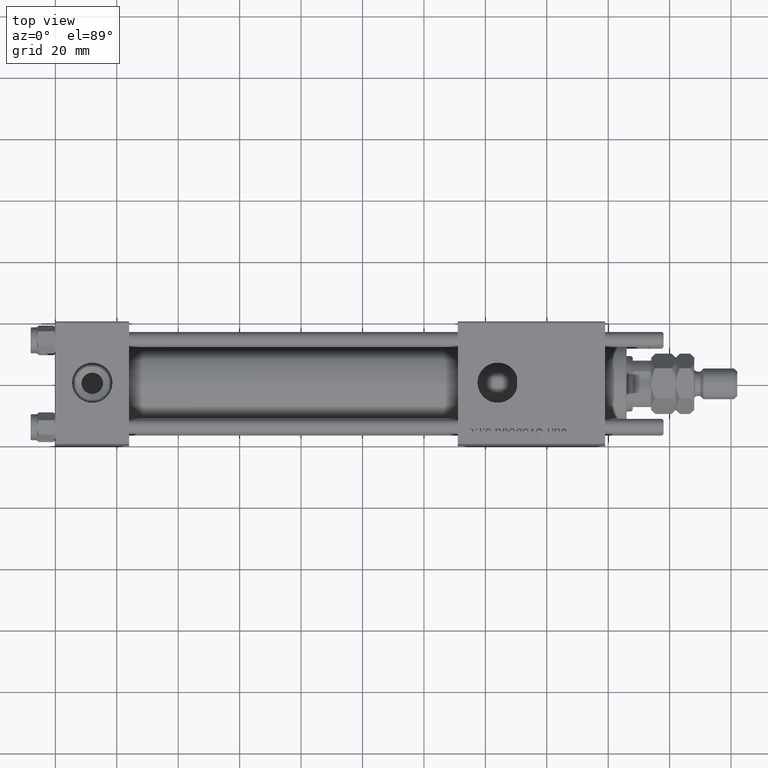
[diagram: clean part render]
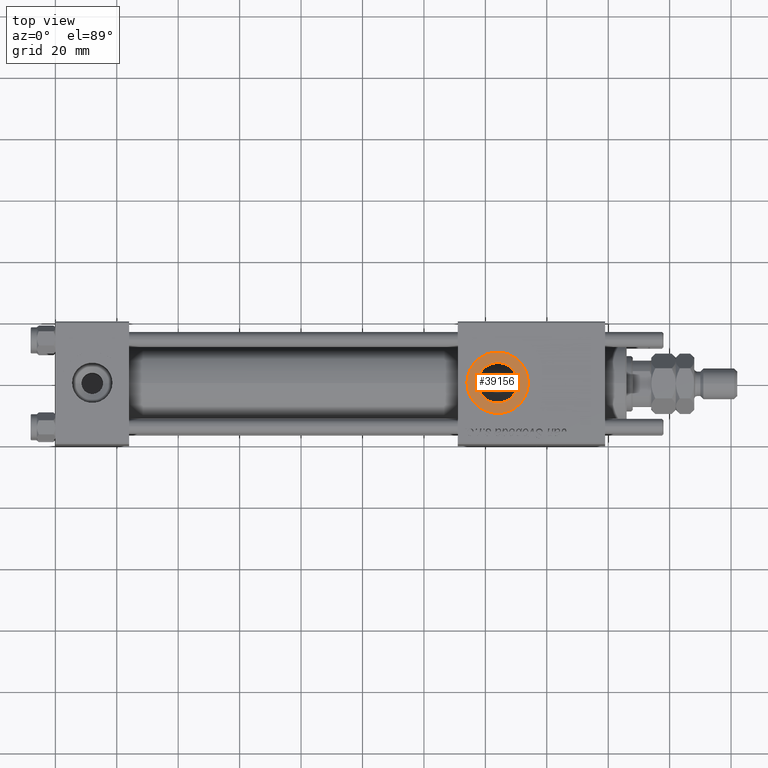
[diagram: same view with one face highlighted and labeled with its STEP entity id]
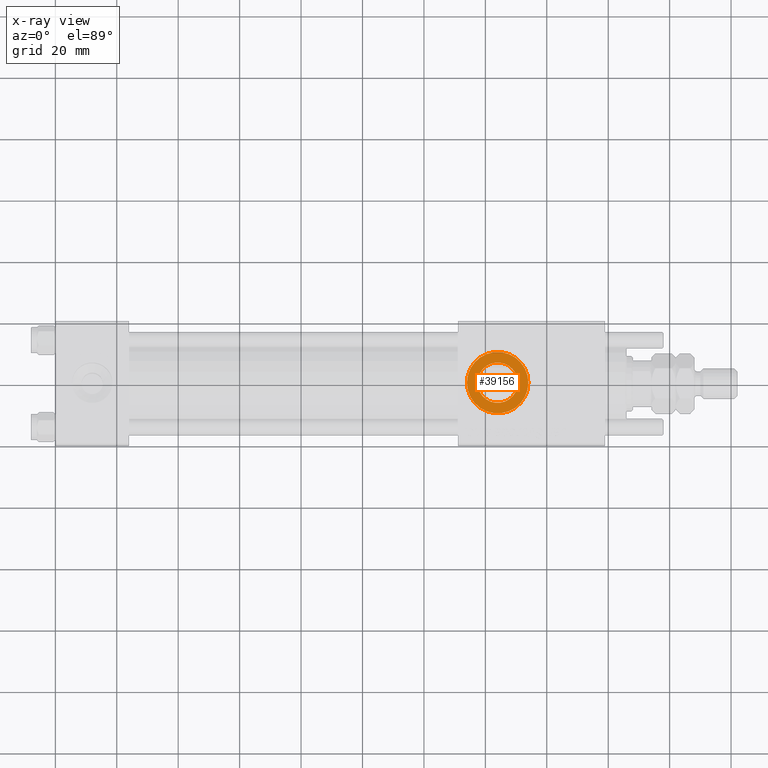
[diagram: x-ray of the same camera — body ghosted, the highlighted face saturated]
A machine part, top view. The second image highlights one B-rep face of the part: STEP entity #39156.
The next image is the same camera in x-ray: the body ghosted, the highlighted face saturated — about 0% of this face is hidden behind the body in this view.
In plain terms, the highlighted planar face has unit normal (0, 0, 1).
Its self-contained STEP definition (entity closure, byte-faithful):
#337 = DIRECTION ( 'NONE',  ( -0.000000000000000000, -0.000000000000000000, -1.000000000000000000 ) ) ;
#4327 = VERTEX_POINT ( 'NONE', #5021 ) ;
#5021 = CARTESIAN_POINT ( 'NONE',  ( 137.4200000000000159, -1.734723475976806897E-15, 19.80000000000000071 ) ) ;
#5383 = EDGE_CURVE ( 'NONE', #4327, #5876, #10561, .T. ) ;
#5876 = VERTEX_POINT ( 'NONE', #36820 ) ;
#5900 = FACE_BOUND ( 'NONE', #54006, .T. ) ;
#6278 = CARTESIAN_POINT ( 'NONE',  ( 154.0000000000000284, -1.734723475976806897E-15, 19.80000000000000071 ) ) ;
#8089 = VERTEX_POINT ( 'NONE', #29613 ) ;
#10274 = EDGE_LOOP ( 'NONE', ( #50930, #37161 ) ) ;
#10561 = CIRCLE ( 'NONE', #55439, 6.580000000000002736 ) ;
#11256 = DIRECTION ( 'NONE',  ( 0.000000000000000000, 0.000000000000000000, 1.000000000000000000 ) ) ;
#15875 = CIRCLE ( 'NONE', #17827, 10.00000000000000888 ) ;
#17005 = DIRECTION ( 'NONE',  ( 1.000000000000000000, 0.000000000000000000, 0.000000000000000000 ) ) ;
#17042 = AXIS2_PLACEMENT_3D ( 'NONE', #35363, #11256, #17005 ) ;
#17827 = AXIS2_PLACEMENT_3D ( 'NONE', #37328, #23247, #51705 ) ;
#19620 = DIRECTION ( 'NONE',  ( 0.000000000000000000, 0.000000000000000000, 1.000000000000000000 ) ) ;
#20236 = DIRECTION ( 'NONE',  ( 1.000000000000000000, 0.000000000000000000, -0.000000000000000000 ) ) ;
#20537 = PLANE ( 'NONE',  #32843 ) ;
#23136 = ORIENTED_EDGE ( 'NONE', *, *, #5383, .T. ) ;
#23247 = DIRECTION ( 'NONE',  ( 0.000000000000000000, 0.000000000000000000, 1.000000000000000000 ) ) ;
#25428 = ORIENTED_EDGE ( 'NONE', *, *, #34326, .T. ) ;
#26985 = VERTEX_POINT ( 'NONE', #6278 ) ;
#28449 = CARTESIAN_POINT ( 'NONE',  ( 144.0000000000000284, -1.734723475976806897E-15, 19.80000000000000071 ) ) ;
#29613 = CARTESIAN_POINT ( 'NONE',  ( 134.0000000000000000, -5.100766768294525560E-16, 19.80000000000000071 ) ) ;
#31746 = AXIS2_PLACEMENT_3D ( 'NONE', #60239, #337, #33338 ) ;
#32450 = DIRECTION ( 'NONE',  ( 1.000000000000000000, 0.000000000000000000, 0.000000000000000000 ) ) ;
#32843 = AXIS2_PLACEMENT_3D ( 'NONE', #53270, #19620, #20236 ) ;
#33338 = DIRECTION ( 'NONE',  ( 1.000000000000000000, 0.000000000000000000, 0.000000000000000000 ) ) ;
#33612 = EDGE_CURVE ( 'NONE', #8089, #26985, #42438, .T. ) ;
#34326 = EDGE_CURVE ( 'NONE', #5876, #4327, #55154, .T. ) ;
#35363 = CARTESIAN_POINT ( 'NONE',  ( 144.0000000000000284, -1.734723475976806897E-15, 19.80000000000000071 ) ) ;
#36820 = CARTESIAN_POINT ( 'NONE',  ( 150.5800000000000125, -9.289058821378450943E-16, 19.80000000000000071 ) ) ;
#37161 = ORIENTED_EDGE ( 'NONE', *, *, #33612, .T. ) ;
#37328 = CARTESIAN_POINT ( 'NONE',  ( 144.0000000000000284, -1.734723475976806897E-15, 19.80000000000000071 ) ) ;
#39156 = ADVANCED_FACE ( 'NONE', ( #5900, #42864 ), #20537, .T. ) ;
#42438 = CIRCLE ( 'NONE', #17042, 10.00000000000000888 ) ;
#42864 = FACE_OUTER_BOUND ( 'NONE', #10274, .T. ) ;
#47118 = DIRECTION ( 'NONE',  ( -0.000000000000000000, -0.000000000000000000, -1.000000000000000000 ) ) ;
#50930 = ORIENTED_EDGE ( 'NONE', *, *, #56722, .T. ) ;
#51705 = DIRECTION ( 'NONE',  ( 1.000000000000000000, 0.000000000000000000, 0.000000000000000000 ) ) ;
#53270 = CARTESIAN_POINT ( 'NONE',  ( 144.0000000000000284, -1.734723475976806897E-15, 19.80000000000000071 ) ) ;
#54006 = EDGE_LOOP ( 'NONE', ( #23136, #25428 ) ) ;
#55154 = CIRCLE ( 'NONE', #31746, 6.580000000000002736 ) ;
#55439 = AXIS2_PLACEMENT_3D ( 'NONE', #28449, #47118, #32450 ) ;
#56722 = EDGE_CURVE ( 'NONE', #26985, #8089, #15875, .T. ) ;
#60239 = CARTESIAN_POINT ( 'NONE',  ( 144.0000000000000284, -1.734723475976806897E-15, 19.80000000000000071 ) ) ;